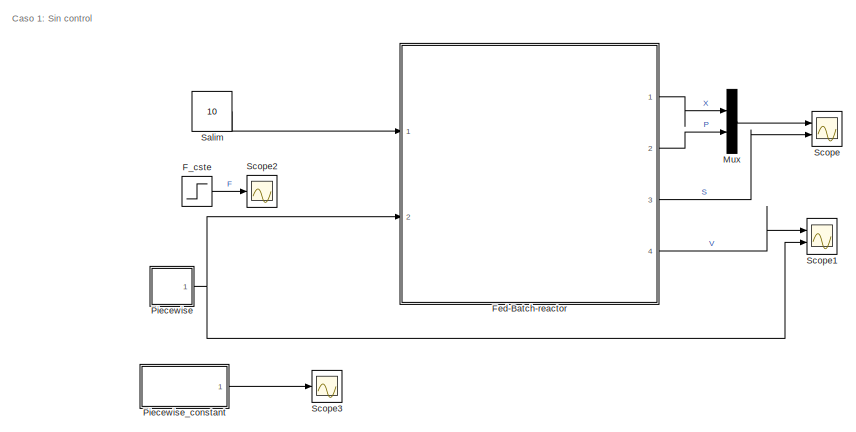
[diagram: root canvas - part 1/2, left side, full height]
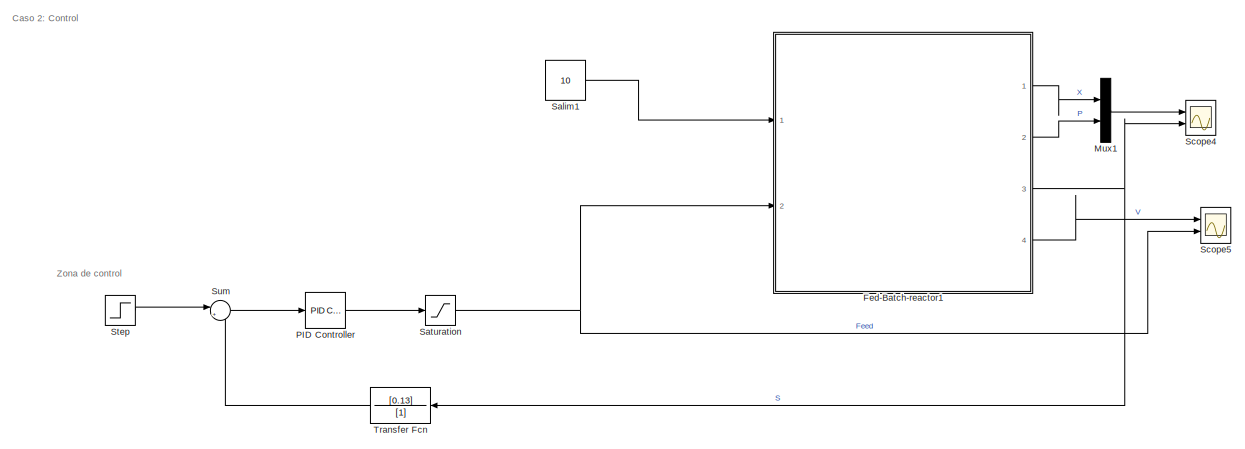
[diagram: root canvas - part 2/2, right side, full height]
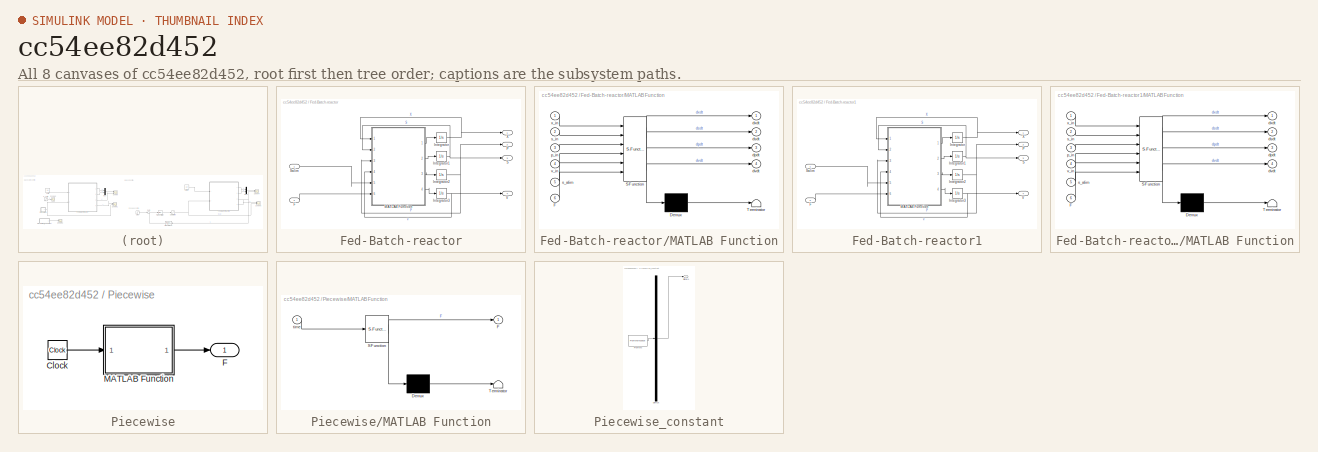
[diagram: thumbnail index - all 8 canvases of the model, root first then tree order]
MODEL slx_cc54ee82d452
KIND model
CONFIG AbsTol = auto
CONFIG EnableMultiTasking = off
CONFIG FixedStep = 0.01
CONFIG MaxStep = 0.1
CONFIG MinStep = 0.01
CONFIG RelTol = 1e-3
CONFIG SampleTimeConstraint = Unconstrained
CONFIG SolverName = daessc
CONFIG StartTime = 0.0
CONFIG StopTime = 50
BLOCK [Step] F_cste
  After = 0.1
  SampleTime = 0
  Time = 20
BLOCK [SubSystem] Fed-Batch-reactor
  Ports = [2, 4]
  RequestExecContextInheritance = off
BLOCK [Inport] Fed-Batch-reactor/F
  Port = 2
BLOCK [Integrator] Fed-Batch-reactor/Integrator
  InitialCondition = 0.01
  Ports = [1, 1]
BLOCK [Integrator] Fed-Batch-reactor/Integrator1
  InitialCondition = 20
  Ports = [1, 1]
BLOCK [Integrator] Fed-Batch-reactor/Integrator2
  Ports = [1, 1]
BLOCK [Integrator] Fed-Batch-reactor/Integrator3
  InitialCondition = 1
  Ports = [1, 1]
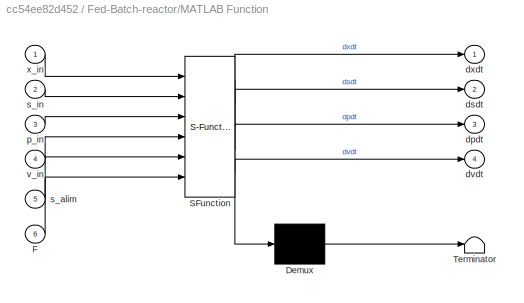
BLOCK [SubSystem] Fed-Batch-reactor/MATLAB Function
  ErrorFcn = Stateflow.Translate.translate
  PermitHierarchicalResolution = ExplicitOnly
  Ports = [6, 4]
  RequestExecContextInheritance = off
  SFBlockType = MATLAB Function
  TreatAsAtomicUnit = on
BLOCK [Demux] Fed-Batch-reactor/MATLAB Function/ Demux 
  Outputs = 1
  Ports = [1, 1]
BLOCK [S-Function] Fed-Batch-reactor/MATLAB Function/ SFunction 
  EnableBusSupport = on
  FunctionName = sf_sfun
  PortCounts = [6 5]
  Ports = [6, 5]
  SFcnIsStateOwnerBlock = off
  SFunctionDeploymentMode = off
  Tag = Stateflow S-Function 2
BLOCK [Terminator] Fed-Batch-reactor/MATLAB Function/ Terminator 
BLOCK [Inport] Fed-Batch-reactor/MATLAB Function/F
  Port = 6
BLOCK [Outport] Fed-Batch-reactor/MATLAB Function/dpdt
  Port = 3
BLOCK [Outport] Fed-Batch-reactor/MATLAB Function/dsdt
  Port = 2
BLOCK [Outport] Fed-Batch-reactor/MATLAB Function/dvdt
  Port = 4
BLOCK [Outport] Fed-Batch-reactor/MATLAB Function/dxdt
BLOCK [Inport] Fed-Batch-reactor/MATLAB Function/p_in
  Port = 3
BLOCK [Inport] Fed-Batch-reactor/MATLAB Function/s_alim
  Port = 5
BLOCK [Inport] Fed-Batch-reactor/MATLAB Function/s_in
  Port = 2
BLOCK [Inport] Fed-Batch-reactor/MATLAB Function/v_in
  Port = 4
BLOCK [Inport] Fed-Batch-reactor/MATLAB Function/x_in
BLOCK [Outport] Fed-Batch-reactor/P
  Port = 2
BLOCK [Outport] Fed-Batch-reactor/S
  Port = 3
BLOCK [Inport] Fed-Batch-reactor/Salim
BLOCK [Outport] Fed-Batch-reactor/V
  Port = 4
BLOCK [Outport] Fed-Batch-reactor/X
BLOCK [SubSystem] Fed-Batch-reactor1
  Ports = [2, 4]
  RequestExecContextInheritance = off
BLOCK [Inport] Fed-Batch-reactor1/F
  Port = 2
BLOCK [Integrator] Fed-Batch-reactor1/Integrator
  InitialCondition = 0.01
  Ports = [1, 1]
BLOCK [Integrator] Fed-Batch-reactor1/Integrator1
  InitialCondition = 20
  Ports = [1, 1]
BLOCK [Integrator] Fed-Batch-reactor1/Integrator2
  Ports = [1, 1]
BLOCK [Integrator] Fed-Batch-reactor1/Integrator3
  InitialCondition = 1
  Ports = [1, 1]
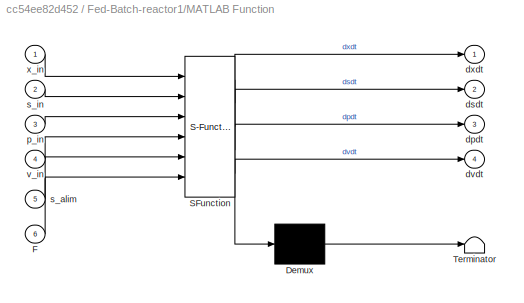
BLOCK [SubSystem] Fed-Batch-reactor1/MATLAB Function
  ErrorFcn = Stateflow.Translate.translate
  PermitHierarchicalResolution = ExplicitOnly
  Ports = [6, 4]
  RequestExecContextInheritance = off
  SFBlockType = MATLAB Function
  TreatAsAtomicUnit = on
BLOCK [Demux] Fed-Batch-reactor1/MATLAB Function/ Demux 
  Outputs = 1
  Ports = [1, 1]
BLOCK [S-Function] Fed-Batch-reactor1/MATLAB Function/ SFunction 
  EnableBusSupport = on
  FunctionName = sf_sfun
  PortCounts = [6 5]
  Ports = [6, 5]
  SFcnIsStateOwnerBlock = off
  SFunctionDeploymentMode = off
  Tag = Stateflow S-Function 3
BLOCK [Terminator] Fed-Batch-reactor1/MATLAB Function/ Terminator 
BLOCK [Inport] Fed-Batch-reactor1/MATLAB Function/F
  Port = 6
BLOCK [Outport] Fed-Batch-reactor1/MATLAB Function/dpdt
  Port = 3
BLOCK [Outport] Fed-Batch-reactor1/MATLAB Function/dsdt
  Port = 2
BLOCK [Outport] Fed-Batch-reactor1/MATLAB Function/dvdt
  Port = 4
BLOCK [Outport] Fed-Batch-reactor1/MATLAB Function/dxdt
BLOCK [Inport] Fed-Batch-reactor1/MATLAB Function/p_in
  Port = 3
BLOCK [Inport] Fed-Batch-reactor1/MATLAB Function/s_alim
  Port = 5
BLOCK [Inport] Fed-Batch-reactor1/MATLAB Function/s_in
  Port = 2
BLOCK [Inport] Fed-Batch-reactor1/MATLAB Function/v_in
  Port = 4
BLOCK [Inport] Fed-Batch-reactor1/MATLAB Function/x_in
BLOCK [Outport] Fed-Batch-reactor1/P
  Port = 2
BLOCK [Outport] Fed-Batch-reactor1/S
  Port = 3
BLOCK [Inport] Fed-Batch-reactor1/Salim
BLOCK [Outport] Fed-Batch-reactor1/V
  Port = 4
BLOCK [Outport] Fed-Batch-reactor1/X
BLOCK [Mux] Mux
  DisplayOption = bar
  Inputs = 2
  Ports = [2, 1]
BLOCK [Mux] Mux1
  DisplayOption = bar
  Inputs = 2
  Ports = [2, 1]
BLOCK [Reference] PID Controller  REF=pid_lib/PID Controller
  Ports = [1, 1]
  SourceBlock = pid_lib/PID Controller
  SourceProductBaseCode = SL
  SourceType = PID 1dof
BLOCK [SubSystem] Piecewise
  Ports = [0, 1]
  RequestExecContextInheritance = off
BLOCK [Clock] Piecewise/Clock
BLOCK [Outport] Piecewise/F
BLOCK [SubSystem] Piecewise/MATLAB Function
  ErrorFcn = Stateflow.Translate.translate
  PermitHierarchicalResolution = ExplicitOnly
  Ports = [1, 1]
  RequestExecContextInheritance = off
  SFBlockType = MATLAB Function
  TreatAsAtomicUnit = on
BLOCK [Demux] Piecewise/MATLAB Function/ Demux 
  Outputs = 1
  Ports = [1, 1]
BLOCK [S-Function] Piecewise/MATLAB Function/ SFunction 
  EnableBusSupport = on
  FunctionName = sf_sfun
  PortCounts = [1 2]
  Ports = [1, 2]
  SFcnIsStateOwnerBlock = off
  SFunctionDeploymentMode = off
  Tag = Stateflow S-Function 1
BLOCK [Terminator] Piecewise/MATLAB Function/ Terminator 
BLOCK [Outport] Piecewise/MATLAB Function/F
BLOCK [Inport] Piecewise/MATLAB Function/time
BLOCK [SubSystem] Piecewise_constant
  ClipboardFcn = sigbuilder_block('clipboard');
  CloseFcn = sigbuilder_block('close');
  ContinueFcn = sigbuilder_block('continue');
  CopyFcn = sigbuilder_block('copy');
  DeleteFcn = sigbuilder_block('delete');
  LoadFcn = sigbuilder_block('load');
  MaskHideContents = on
  ModelCloseFcn = sigbuilder_block('modelClose');
  NameChangeFcn = sigbuilder_block('namechange');
  OpenFcn = sigbuilder_block('open',[423 130.2 550.8 400.2 ]);
  PauseFcn = sigbuilder_block('pause');
  Ports = [0, 1]
  PreSaveFcn = sigbuilder_block('preSave');
  RequestExecContextInheritance = off
  StartFcn = sigbuilder_block('start');
  StopFcn = sigbuilder_block('stop');
  Tag = STV Subsys
BLOCK [Demux] Piecewise_constant/Demux
  DisplayOption = none
  Outputs = 1
  Ports = [1, 1]
  Tag = STV Demux
BLOCK [FromWorkspace] Piecewise_constant/FromWs
  Tag = STV FromWs
  VariableName = tuvar
BLOCK [Outport] Piecewise_constant/Signal 1
  Tag = STV Outport
BLOCK [Constant] Salim
  SampleTime = -1
  Value = 10
  VectorParams1D = off
BLOCK [Constant] Salim1
  SampleTime = -1
  Value = 10
  VectorParams1D = off
BLOCK [Saturate] Saturation
  LowerLimit = 0
  UpperLimit = 10
BLOCK [Scope] Scope
  Floating = off
  NumInputPorts = 2
  Ports = [2]
  ScopeSpecificationString = Simulink.scopes.TimeScopeBlockCfg('CurrentConfiguration', extmgr.ConfigurationSet(extmgr.Configuration('Core','General UI',true),extmgr.Configuration('Core','Source UI',true),extmgr.Configuration('Sources','WiredSimulink',true),extmgr.Configuration('Visuals','Time Domain',true,'SerializedDisplays',{struct('MinYLimReal','-12.12291','MaxYLimReal','109.10604','YLabelReal','','MinYLimMag','0.00000','M...<+1485ch>
BLOCK [Scope] Scope1
  Floating = off
  NumInputPorts = 2
  Ports = [2]
  ScopeSpecificationString = Simulink.scopes.TimeScopeBlockCfg('CurrentConfiguration', extmgr.ConfigurationSet(extmgr.Configuration('Core','General UI',true),extmgr.Configuration('Core','Source UI',true),extmgr.Configuration('Sources','WiredSimulink',true,'DataLoggingVariableName','ScopeData1'),extmgr.Configuration('Visuals','Time Domain',true,'SerializedDisplays',{struct('MinYLimReal','-0.12381','MaxYLimReal','11.11425','YLa...<+2117ch>
BLOCK [Scope] Scope2
  Floating = off
  NumInputPorts = 1
  Ports = [1]
  ScopeSpecificationString = Simulink.scopes.TimeScopeBlockCfg('CurrentConfiguration', extmgr.ConfigurationSet(extmgr.Configuration('Core','General UI',true),extmgr.Configuration('Core','Source UI',true),extmgr.Configuration('Sources','WiredSimulink',true,'DataLoggingVariableName','ScopeData1'),extmgr.Configuration('Visuals','Time Domain',true,'SerializedDisplays',{struct('MinYLimReal','-0.0125','MaxYLimReal','0.1125','YLabel...<+1354ch>
BLOCK [Scope] Scope3
  Floating = off
  NumInputPorts = 1
  Ports = [1]
  ScopeSpecificationString = Simulink.scopes.TimeScopeBlockCfg('CurrentConfiguration', extmgr.ConfigurationSet(extmgr.Configuration('Core','General UI',true),extmgr.Configuration('Core','Source UI',true),extmgr.Configuration('Sources','WiredSimulink',true,'DataLoggingVariableName','ScopeData3'),extmgr.Configuration('Visuals','Time Domain',true,'SerializedDisplays',{struct('MinYLimReal','-0.09875','MaxYLimReal','0.88875','YLab...<+1377ch>
BLOCK [Scope] Scope4
  Floating = off
  NumInputPorts = 2
  Ports = [2]
  ScopeSpecificationString = Simulink.scopes.TimeScopeBlockCfg('CurrentConfiguration', extmgr.ConfigurationSet(extmgr.Configuration('Core','General UI',true),extmgr.Configuration('Core','Source UI',true),extmgr.Configuration('Sources','WiredSimulink',true,'DataLoggingVariableName','ScopeData1'),extmgr.Configuration('Visuals','Time Domain',true,'SerializedDisplays',{struct('MinYLimReal','-2.5','MaxYLimReal','22.5','YLabelReal'...<+1468ch>
BLOCK [Scope] Scope5
  Floating = off
  NumInputPorts = 2
  Ports = [2]
  ScopeSpecificationString = Simulink.scopes.TimeScopeBlockCfg('CurrentConfiguration', extmgr.ConfigurationSet(extmgr.Configuration('Core','General UI',true),extmgr.Configuration('Core','Source UI',true),extmgr.Configuration('Sources','WiredSimulink',true,'DataLoggingVariableName','ScopeData2'),extmgr.Configuration('Visuals','Time Domain',true,'SerializedDisplays',{struct('MinYLimReal','-16.73761','MaxYLimReal','160.63846','Y...<+2123ch>
BLOCK [Step] Step
  After = 10
  Before = 0.01
  SampleTime = 0
  Time = 15
BLOCK [Sum] Sum
  Inputs = |+-
  Ports = [2, 1]
BLOCK [TransferFcn] Transfer Fcn
  Denominator = [1]
  NameLocation = top
  Numerator = [0.13]
ANNOTATION (root): Caso 1: Sin control
ANNOTATION (root): Caso 2: Control
ANNOTATION (root): Zona de control
LINE F_cste:1 -> Scope2:1
LINE Fed-Batch-reactor/F:1 -> Fed-Batch-reactor/MATLAB Function:6
NET Fed-Batch-reactor/Integrator1:1 -> Fed-Batch-reactor/MATLAB Function:2, Fed-Batch-reactor/S:1
NET Fed-Batch-reactor/Integrator2:1 -> Fed-Batch-reactor/MATLAB Function:3, Fed-Batch-reactor/P:1
NET Fed-Batch-reactor/Integrator3:1 -> Fed-Batch-reactor/MATLAB Function:4, Fed-Batch-reactor/V:1
NET Fed-Batch-reactor/Integrator:1 -> Fed-Batch-reactor/MATLAB Function:1, Fed-Batch-reactor/X:1
LINE Fed-Batch-reactor/MATLAB Function:1 -> Fed-Batch-reactor/Integrator:1
LINE Fed-Batch-reactor/MATLAB Function:2 -> Fed-Batch-reactor/Integrator1:1
LINE Fed-Batch-reactor/MATLAB Function:3 -> Fed-Batch-reactor/Integrator2:1
LINE Fed-Batch-reactor/MATLAB Function:4 -> Fed-Batch-reactor/Integrator3:1
LINE Fed-Batch-reactor/Salim:1 -> Fed-Batch-reactor/MATLAB Function:5
LINE Fed-Batch-reactor1/F:1 -> Fed-Batch-reactor1/MATLAB Function:6
NET Fed-Batch-reactor1/Integrator1:1 -> Fed-Batch-reactor1/MATLAB Function:2, Fed-Batch-reactor1/S:1
NET Fed-Batch-reactor1/Integrator2:1 -> Fed-Batch-reactor1/MATLAB Function:3, Fed-Batch-reactor1/P:1
NET Fed-Batch-reactor1/Integrator3:1 -> Fed-Batch-reactor1/MATLAB Function:4, Fed-Batch-reactor1/V:1
NET Fed-Batch-reactor1/Integrator:1 -> Fed-Batch-reactor1/MATLAB Function:1, Fed-Batch-reactor1/X:1
LINE Fed-Batch-reactor1/MATLAB Function:1 -> Fed-Batch-reactor1/Integrator:1
LINE Fed-Batch-reactor1/MATLAB Function:2 -> Fed-Batch-reactor1/Integrator1:1
LINE Fed-Batch-reactor1/MATLAB Function:3 -> Fed-Batch-reactor1/Integrator2:1
LINE Fed-Batch-reactor1/MATLAB Function:4 -> Fed-Batch-reactor1/Integrator3:1
LINE Fed-Batch-reactor1/Salim:1 -> Fed-Batch-reactor1/MATLAB Function:5
LINE Fed-Batch-reactor1:1 -> Mux1:1
LINE Fed-Batch-reactor1:2 -> Mux1:2
NET Fed-Batch-reactor1:3 -> Scope4:2, Transfer Fcn:1
LINE Fed-Batch-reactor1:4 -> Scope5:1
LINE Fed-Batch-reactor:1 -> Mux:1
LINE Fed-Batch-reactor:2 -> Mux:2
LINE Fed-Batch-reactor:3 -> Scope:2
LINE Fed-Batch-reactor:4 -> Scope1:1
LINE Mux1:1 -> Scope4:1
LINE Mux:1 -> Scope:1
LINE PID Controller:1 -> Saturation:1
LINE Piecewise/Clock:1 -> Piecewise/MATLAB Function:1
LINE Piecewise/MATLAB Function:1 -> Piecewise/F:1
NET Piecewise:1 -> Fed-Batch-reactor:2, Scope1:2
LINE Piecewise_constant:1 -> Scope3:1
LINE Salim1:1 -> Fed-Batch-reactor1:1
LINE Salim:1 -> Fed-Batch-reactor:1
NET Saturation:1 -> Fed-Batch-reactor1:2, Scope5:2
LINE Step:1 -> Sum:1
LINE Sum:1 -> PID Controller:1
LINE Transfer Fcn:1 -> Sum:2
note: NET lines group one-source signal fan-out (src -> all destinations, sorted); 1:1 wires keep LINE
CHART Piecewise/MATLAB Function states=1 transitions=1
  STATE_LABEL 'eML_blk_kernel()'
  STATE_LABEL 'SCRIPT:\nfunction F = Flow(time)\n\n\n\nif time<=10\n    F=0;\nelseif time>10 && time<=15\n    F=0.1;\nelseif time>15 && time<=20\n    F=0.1;\nelseif time>20 && time<=30\n    F=0.8;\nelse\n    F=0;\nend\n\n\nend\n'
CHART Fed-Batch-reactor/MATLAB Function states=1 transitions=1
  STATE_LABEL 'eML_blk_kernel()'
  STATE_LABEL 'SCRIPT:\nfunction [dxdt, dsdt,dpdt,dvdt] =Bio_fed_batch(x_in,s_in,p_in,v_in,s_alim,F)\n\n%Definir Parámetros\numax=0.75;%h^-1Velocidad de crecimiento máximo\nKs=0.08; %Afininidad por el sustrato\nSmax=30; %Sustrato máximo que inhibie el crecimiento\nYxs=0.8;% (gX/gS) rendimiento de biomasa en sustrato\nms=0.00001; %constante de mantenimiento\nalfa=0.05; %constante asociada al crecimiento\nbeta=0.002; %const...<+285ch>'
CHART Fed-Batch-reactor1/MATLAB Function states=1 transitions=1
  STATE_LABEL 'eML_blk_kernel()'
  STATE_LABEL 'SCRIPT:\nfunction [dxdt, dsdt,dpdt,dvdt] =Bio_fed_batch(x_in,s_in,p_in,v_in,s_alim,F)\n\n%Definir Parámetros\numax=0.75;%h^-1Velocidad de crecimiento máximo\nKs=0.08; %Afininidad por el sustrato\nSmax=30; %Sustrato máximo que inhibie el crecimiento\nYxs=0.8;% (gX/gS) rendimiento de biomasa en sustrato\nms=0.00001; %constante de mantenimiento\nalfa=0.05; %constante asociada al crecimiento\nbeta=0.002; %const...<+285ch>'
CHART  states=0 transitions=0
CHART  states=0 transitions=0
CHART  states=0 transitions=0
